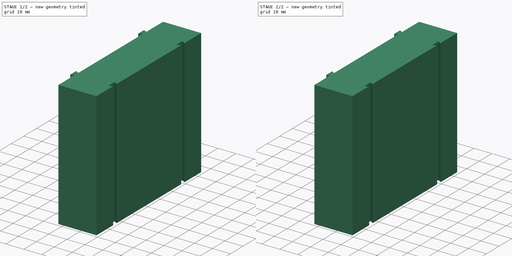
[diagram: build sequence overview — one tinted view per stage of 2, left to right]
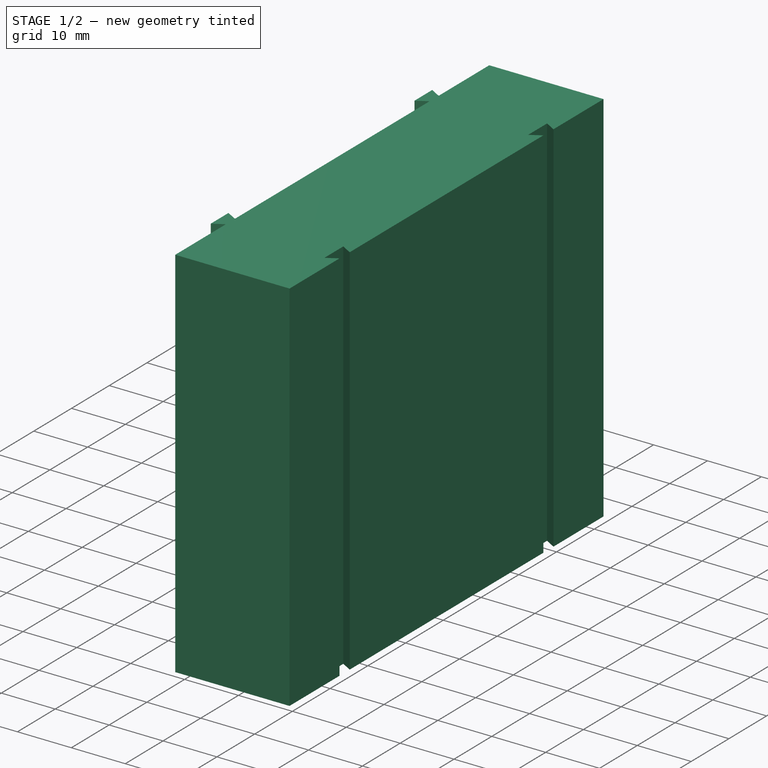
[diagram: stage 1 of 2 — iso view after this stage's code; geometry added in this stage tinted green]
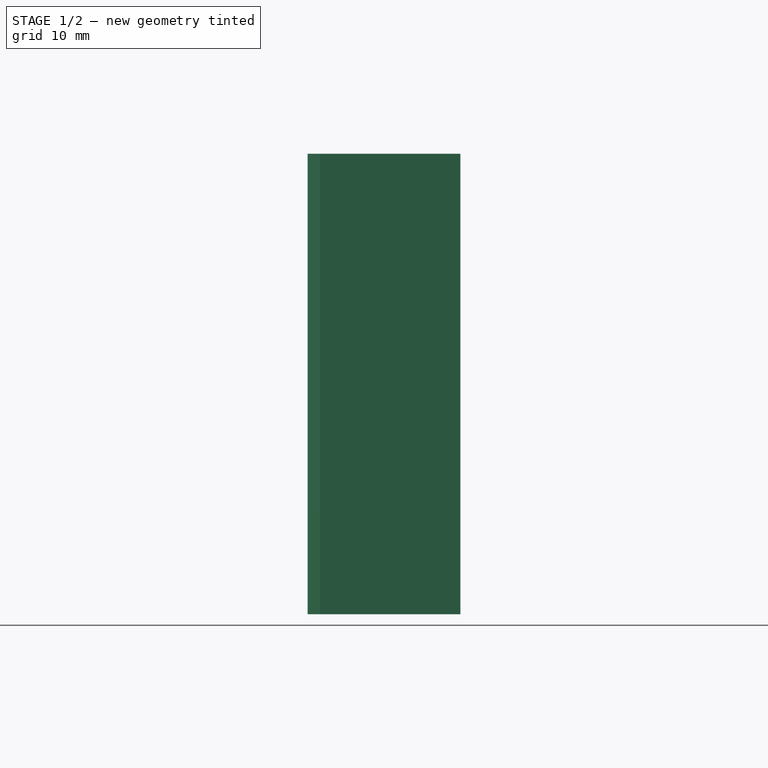
[diagram: stage 1 of 2 — front view after this stage's code; geometry added in this stage tinted green]
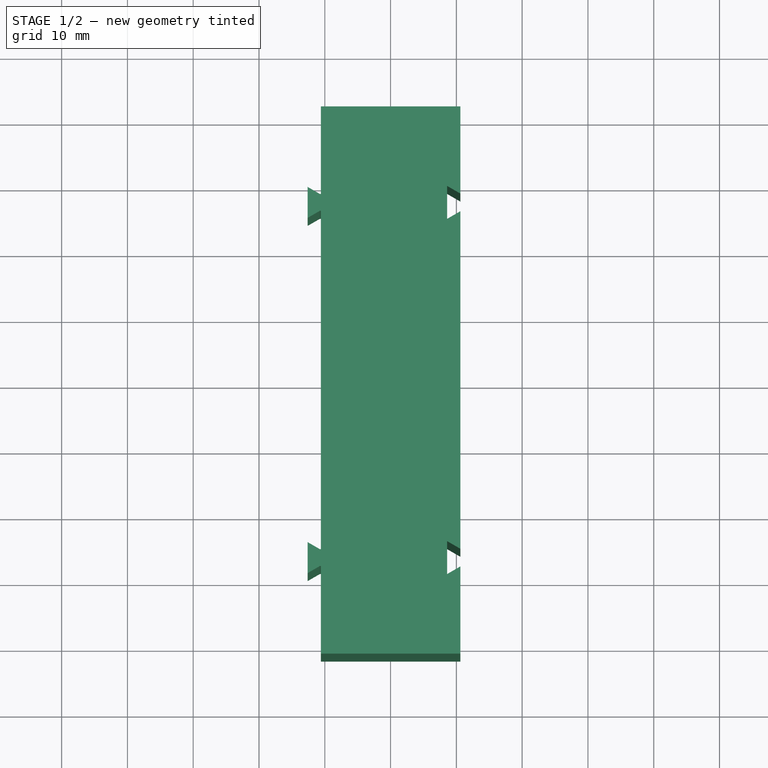
[diagram: stage 1 of 2 — top view after this stage's code; geometry added in this stage tinted green]
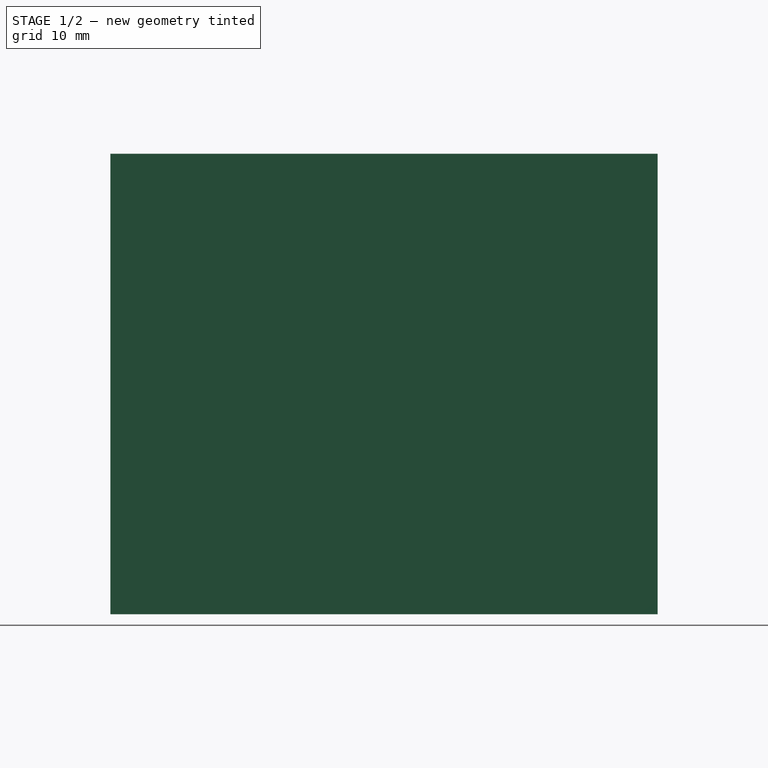
[diagram: stage 1 of 2 — right view after this stage's code; geometry added in this stage tinted green]
FCSTD DOCUMENT  (FreeCAD 0.20R29410 (Git))
Label: CardHolder
License: All rights reserved
LicenseURL: http://en.wikipedia.org/wiki/All_rights_reserved
objects: Sketcher::SketchObject×1, Spreadsheet::Sheet×1, PartDesign::Pad×1, PartDesign::Fillet×1, PartDesign::Body×1
note: 6 computed .brp shape members not serialized (recipe doc carries the construction recipe); baked Part::Feature solids carry a one-line shape summary decoded from their .brp

FEATURE [Sketcher::SketchObject] Sketch001
  FullyConstrained = true
  MapMode = 5
  Support = -> [XY_Plane]
  expr: Constraints[116] = <<Spreadsheet>>.Length + <<Spreadsheet>>.WallThickness * 2
  expr: Constraints[142] = <<Spreadsheet>>.Tolerance
  expr: Constraints[143] = .Constraints.Li - <<Spreadsheet>>.Tolerance
  expr: Constraints[144] = .Constraints.Wi - <<Spreadsheet>>.Tolerance * 2
  expr: Constraints[146] = .Constraints.Al
  expr: Constraints[158] = <<Spreadsheet>>.LockDistance
  expr: Constraints[159] = <<Spreadsheet>>.Width + <<Spreadsheet>>.WallThickness * 2
  sketch-geometry (56):
    g0: LineSegment StartX=-10.6 StartY=41.6 StartZ=0 EndX=10.6 EndY=41.6 EndZ=0
    g1: LineSegment StartX=10.6 StartY=41.6 StartZ=0 EndX=10.6 EndY=28.3453 EndZ=0
    g2: LineSegment StartX=10.6 StartY=28.3453 StartZ=0 EndX=8.6 EndY=29.5 EndZ=0
    g3: LineSegment StartX=8.6 StartY=29.5 StartZ=0 EndX=8.6 EndY=24.5 EndZ=0
    g4: LineSegment StartX=8.6 StartY=24.5 StartZ=0 EndX=10.6 EndY=25.6547 EndZ=0
    g5: LineSegment StartX=10.6 StartY=25.6547 StartZ=0 EndX=10.6 EndY=-25.6547 EndZ=0
    g6: LineSegment StartX=10.6 StartY=-25.6547 StartZ=0 EndX=8.6 EndY=-24.5 EndZ=0
    g7: LineSegment StartX=8.6 StartY=-24.5 StartZ=0 EndX=8.6 EndY=-29.5 EndZ=0
    g8: LineSegment StartX=8.6 StartY=-29.5 StartZ=0 EndX=10.6 EndY=-28.3453 EndZ=0
    g9: LineSegment StartX=10.6 StartY=-28.3453 StartZ=0 EndX=10.6 EndY=-41.6 EndZ=0
    g10: LineSegment StartX=10.6 StartY=-41.6 StartZ=0 EndX=-10.6 EndY=-41.6 EndZ=0
    g11: LineSegment StartX=-10.6 StartY=-41.6 StartZ=0 EndX=-10.6 EndY=-28.2819 EndZ=0
    g12: LineSegment StartX=-10.6 StartY=-28.2819 StartZ=0 EndX=-10.75 EndY=-28.2819 EndZ=0
    g13: LineSegment StartX=-10.75 StartY=-28.2819 StartZ=0 EndX=-12.6 EndY=-29.35 EndZ=0
    g14: LineSegment StartX=-12.6 StartY=-29.35 StartZ=0 EndX=-12.6 EndY=-24.65 EndZ=0
    g15: LineSegment StartX=-12.6 StartY=-24.65 StartZ=0 EndX=-10.75 EndY=-25.7181 EndZ=0
    g16: LineSegment StartX=-10.75 StartY=-25.7181 StartZ=0 EndX=-10.6 EndY=-25.7181 EndZ=0
    g17: LineSegment StartX=-10.6 StartY=-25.7181 StartZ=0 EndX=-10.6 EndY=25.7181 EndZ=0
    g18: LineSegment StartX=-10.6 StartY=25.7181 StartZ=0 EndX=-10.75 EndY=25.7181 EndZ=0
    g19: LineSegment StartX=-10.75 StartY=25.7181 StartZ=0 EndX=-12.6 EndY=24.65 EndZ=0
    g20: LineSegment StartX=-12.6 StartY=24.65 StartZ=0 EndX=-12.6 EndY=29.35 EndZ=0
    g21: LineSegment StartX=-12.6 StartY=29.35 StartZ=0 EndX=-10.75 EndY=28.2819 EndZ=0
    g22: LineSegment StartX=-10.75 StartY=28.2819 StartZ=0 EndX=-10.6 EndY=28.2819 EndZ=0
    g23: LineSegment StartX=-10.6 StartY=28.2819 StartZ=0 EndX=-10.6 EndY=41.6 EndZ=0
    g24: LineSegment StartX=-10.6 StartY=-25.7181 StartZ=0 EndX=-10.6 EndY=-28.2819 EndZ=0
    g25: LineSegment StartX=10.6 StartY=-28.3453 StartZ=0 EndX=10.6 EndY=-25.6547 EndZ=0
    g26: LineSegment StartX=10.6 StartY=25.6547 StartZ=0 EndX=10.6 EndY=28.3453 EndZ=0
    g27: LineSegment StartX=10 StartY=41 StartZ=0 EndX=-10 EndY=41 EndZ=0
    g28: LineSegment StartX=-10 StartY=41 StartZ=0 EndX=-10 EndY=27.6819 EndZ=0
    g29: LineSegment StartX=-10 StartY=27.6819 StartZ=0 EndX=-10.9108 EndY=27.6819 EndZ=0
    g30: LineSegment StartX=-10.9108 StartY=27.6819 StartZ=0 EndX=-12 EndY=28.3108 EndZ=0
    g31: LineSegment StartX=-12 StartY=28.3108 StartZ=0 EndX=-12 EndY=25.6892 EndZ=0
    g32: LineSegment StartX=-12 StartY=25.6892 StartZ=0 EndX=-10.9108 EndY=26.3181 EndZ=0
    g33: LineSegment StartX=-10.9108 StartY=26.3181 StartZ=0 EndX=-10 EndY=26.3181 EndZ=0
    g34: LineSegment StartX=-10 StartY=26.3181 StartZ=0 EndX=-10 EndY=27.6819 EndZ=0
    g35: LineSegment StartX=-10 StartY=26.3181 StartZ=0 EndX=-10 EndY=-41 EndZ=0
    g36: LineSegment StartX=-10 StartY=-41 StartZ=0 EndX=10 EndY=-41 EndZ=0
    g37: LineSegment StartX=10 StartY=-41 StartZ=0 EndX=10 EndY=24.6155 EndZ=0
    g38: LineSegment StartX=10 StartY=24.6155 StartZ=0 EndX=8 EndY=23.4608 EndZ=0
    g39: LineSegment StartX=8 StartY=23.4608 StartZ=0 EndX=8 EndY=30.5392 EndZ=0
    g40: LineSegment StartX=8 StartY=30.5392 StartZ=0 EndX=10 EndY=29.3845 EndZ=0
    g41: LineSegment StartX=10 StartY=29.3845 StartZ=0 EndX=10 EndY=41 EndZ=0
    g42: LineSegment StartX=-10 StartY=41 StartZ=0 EndX=-10.6 EndY=41 EndZ=0
    g43: LineSegment StartX=10 StartY=41 StartZ=0 EndX=10 EndY=41.6 EndZ=0
    g44: LineSegment StartX=10 StartY=29.3845 StartZ=0 EndX=10.6 EndY=29.3845 EndZ=0
    g45: LineSegment StartX=8.6 StartY=29.5 StartZ=0 EndX=8.9 EndY=30.0196 EndZ=0
    g46: LineSegment StartX=8.6 StartY=24.5 StartZ=0 EndX=8 EndY=24.5 EndZ=0
    g47: LineSegment StartX=10 StartY=24.6155 StartZ=0 EndX=9.7 EndY=25.1351 EndZ=0
    g48: LineSegment StartX=-12.6 StartY=27 StartZ=0 EndX=10.6 EndY=27 EndZ=0
    g49: LineSegment StartX=-10.6 StartY=28.2819 StartZ=0 EndX=-10.6 EndY=27.6819 EndZ=0
    g50: LineSegment StartX=-10.6 StartY=26.3181 StartZ=0 EndX=-10.6 EndY=25.7181 EndZ=0
    g51: LineSegment StartX=-12 StartY=28.3108 StartZ=0 EndX=-11.7 EndY=28.8304 EndZ=0
    g52: LineSegment StartX=-12 StartY=25.6892 StartZ=0 EndX=-12.6 EndY=25.6892 EndZ=0
    g53: LineSegment StartX=-10.75 StartY=25.7181 StartZ=0 EndX=-11.05 EndY=26.2377 EndZ=0
    g54: LineSegment StartX=10 StartY=-41 StartZ=0 EndX=10 EndY=-41.6 EndZ=0
    g55: LineSegment StartX=-10.6 StartY=-27 StartZ=0 EndX=10.6 EndY=-27 EndZ=0
  constraints (162):
    c: Horizontal(g0)
    c: Coincident(g0,g1)
    c: Vertical(g1)
    c: Coincident(g1,g2)
    c: Coincident(g2,g3)
    c: Vertical(g3)
    c: Coincident(g3,g4)
    c: Coincident(g4,g5)
    c: Vertical(g5)
    c: Coincident(g5,g6)
    c: Coincident(g6,g7)
    c: Vertical(g7)
    c: Coincident(g7,g8)
    c: Coincident(g8,g9)
    c: Vertical(g9)
    c: Coincident(g9,g10)
    c: Horizontal(g10)
    c: Coincident(g10,g11)
    c: Vertical(g11)
    c: Coincident(g11,g12)
    c: Coincident(g12,g13)
    c: Coincident(g13,g14)
    c: Vertical(g14)
    c: Coincident(g14,g15)
    c: Coincident(g15,g16)
    c: Horizontal(g16)
    c: Coincident(g16,g17)
    c: Vertical(g17)
    c: Coincident(g17,g18)
    c: Horizontal(g18)
    c: Coincident(g18,g19)
    c: Coincident(g19,g20)
    c: Vertical(g20)
    c: Coincident(g20,g21)
    c: Coincident(g21,g22)
    c: Horizontal(g22)
    c: Coincident(g22,g23)
    c: Coincident(g23,g0)
    c: Vertical(g23)
    c: Coincident(g49,g22)
    c: Coincident(g50,g17)
    c: Coincident(g24,g16)
    c: Coincident(g24,g11)
    c: Vertical(g24)
    c: Coincident(g25,g8)
    c: Coincident(g25,g5)
    c: Vertical(g25)
    c: Coincident(g26,g4)
    c: Coincident(g26,g1)
    c: Horizontal(g12)
    c: Equal(g6,g8)
    c: Equal(g1,g9)
    c: Equal(g3,g7)
    c: Equal(g26,g25)
    c: Equal(g4,g2)
    c: PointOnObject(g3,g7)
    c: Equal(g13,g15)
    c: Equal(g15,g19)
    c: Equal(g19,g21)
    c: Equal(g16,g12)
    c: Equal(g12,g18)
    c: Equal(g18,g22)
    c: PointOnObject(g19,g14)
    c: Horizontal(g27)
    c: Coincident(g28,g27)
    c: Vertical(g28)
    c: Coincident(g29,g28)
    c: Horizontal(g29)
    c: Coincident(g30,g29)
    c: Coincident(g31,g30)
    c: Vertical(g31)
    c: Coincident(g32,g31)
    c: Coincident(g33,g32)
    c: Horizontal(g33)
    c: Coincident(g34,g33)
    c: Coincident(g34,g28)
    c: Vertical(g34)
    c: Coincident(g35,g33)
    c: Vertical(g35)
    c: Horizontal(g36)
    c: Vertical(g37)
    c: Coincident(g38,g37)
    c: Coincident(g39,g38)
    c: Vertical(g39)
    c: Coincident(g40,g39)
    c: Coincident(g41,g40)
    c: Coincident(g41,g27)
    c: Vertical(g41)
    c: PointOnObject(g40,g37)
    c: Parallel(g40,g2)
    c: Parallel(g4,g38)
    c: Coincident(g42,g27)
    c: PointOnObject(g42,g23)
    c: Horizontal(g42)
    c: Coincident(g43,g27)
    c: PointOnObject(g43,g0)
    c: Vertical(g43)
    c: Coincident(g44,g40)
    c: PointOnObject(g44,g1)
    c: Horizontal(g44)
    c: Coincident(g45,g2)
    c: PointOnObject(g45,g40)
    c: Coincident(g46,g3)
    c: PointOnObject(g46,g39)
    c: Horizontal(g46)
    c: Coincident(g47,g37)
    c: PointOnObject(g47,g4)
    c: Perpendicular(g2,g45)
    c: Perpendicular(g4,g47)
    c: Equal(g42,g43)
    c: Equal(g43,g44)
    c: Equal(g44,g45)
    c: Equal(g45,g46)
    c: Equal(g46,g47)
    c: DistanceX(g42,g42) = 0.6
    c: Horizontal(g48)
    c: DistanceX(g0,g0) = 21.2
    c: Symmetric(g20,g19,g48)
    c: Vertical(g49)
    c: Vertical(g50)
    c: PointOnObject(g22,g17)
    c: PointOnObject(g49,g29)
    c: PointOnObject(g50,g33)
    c: Equal(g42,g49)
    c: Equal(g49,g50)
    c: Parallel(g21,g30)
    c: Parallel(g19,g32)
    c: Coincident(g51,g30)
    c: PointOnObject(g51,g21)
    c: Coincident(g52,g31)
    c: PointOnObject(g52,g20)
    c: Horizontal(g52)
    c: Coincident(g53,g18)
    c: PointOnObject(g53,g32)
    c: Perpendicular(g32,g53)
    c: Perpendicular(g51,g21)
    c: Equal(g50,g53)
    c: Equal(g53,g52)
    c: Equal(g52,g51)
    c: Symmetric(g1,g4,g48)
    c: DistanceX(g2,g1) = 2  'Li'
    c: DistanceY(g3,g3) = 5  'Wi'
    c: DistanceX(g22,g22) = 0.15
    c: DistanceX(g20,g21) = 1.85
    c: DistanceY(g20,g20) = 4.7
    c: Angle(g3,g2) = 1.0472  'Al'
    c: Angle(g20,g21) = 1.0472
    c: Coincident(g54,g36)
    c: PointOnObject(g54,g10)
    c: Vertical(g54)
    c: Equal(g14,g20)
    c: Equal(g11,g23)
    c: Coincident(g37,g36)
    c: Equal(g54,g47)
    c: Coincident(g36,g35)
    c: PointOnObject(g55,g24)
    c: Horizontal(g55)
    c: Symmetric(g5,g8,g55)
    c: DistanceY(g55,g48) = 54
    c: DistanceY(g10,g0) = 83.2
    c: Symmetric(g0,g10,g-1)
    c: Vertical(g26)
FEATURE [Spreadsheet::Sheet] Spreadsheet
  cells = B2=Length; C2(Length)==20mm; B3=Width; C3(Width)==82mm; B4=Height; C4(Height)==70mm; B5=WallThickness; C5(WallThickness)==0.6mm; B6=LockDistance; C6(LockDistance)==54mm; B7=Tolerance; C7(Tolerance)==0.15mm
FEATURE [PartDesign::Pad] Pad
  Direction = (0,0,1)
  Length = 70
  Length2 = 10
  Profile = -> Sketch001
  ReferenceAxis = -> Sketch001 [N_Axis]
  Type = 0
  expr: Length = <<Spreadsheet>>.Height
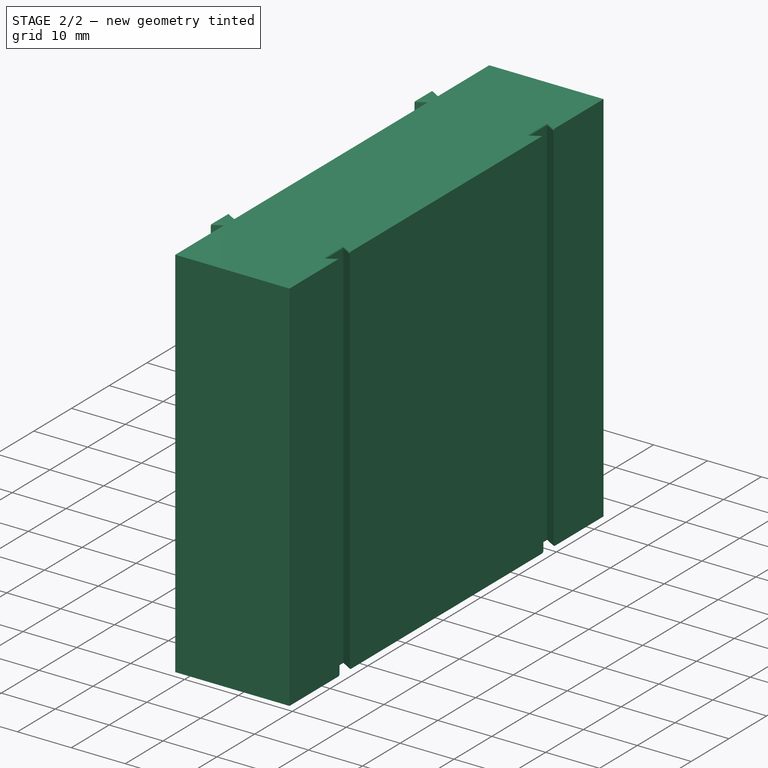
[diagram: stage 2 of 2 — iso view after this stage's code; geometry added in this stage tinted green]
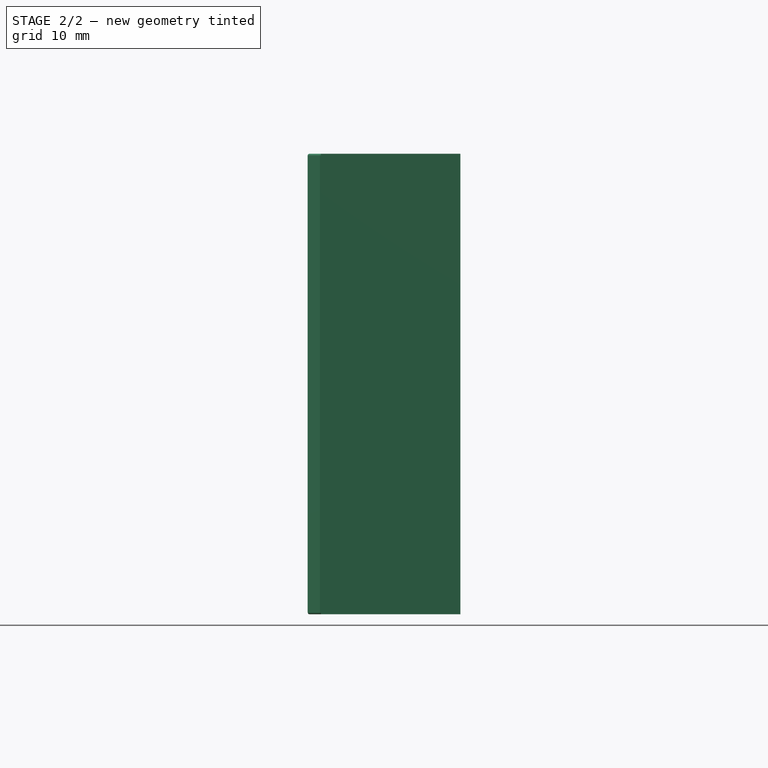
[diagram: stage 2 of 2 — front view after this stage's code; geometry added in this stage tinted green]
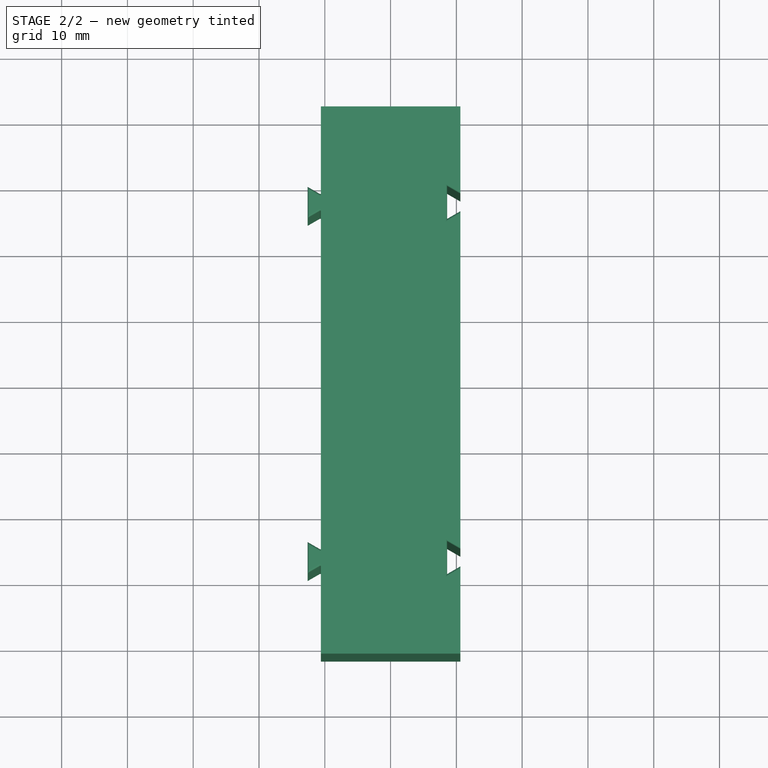
[diagram: stage 2 of 2 — top view after this stage's code; geometry added in this stage tinted green]
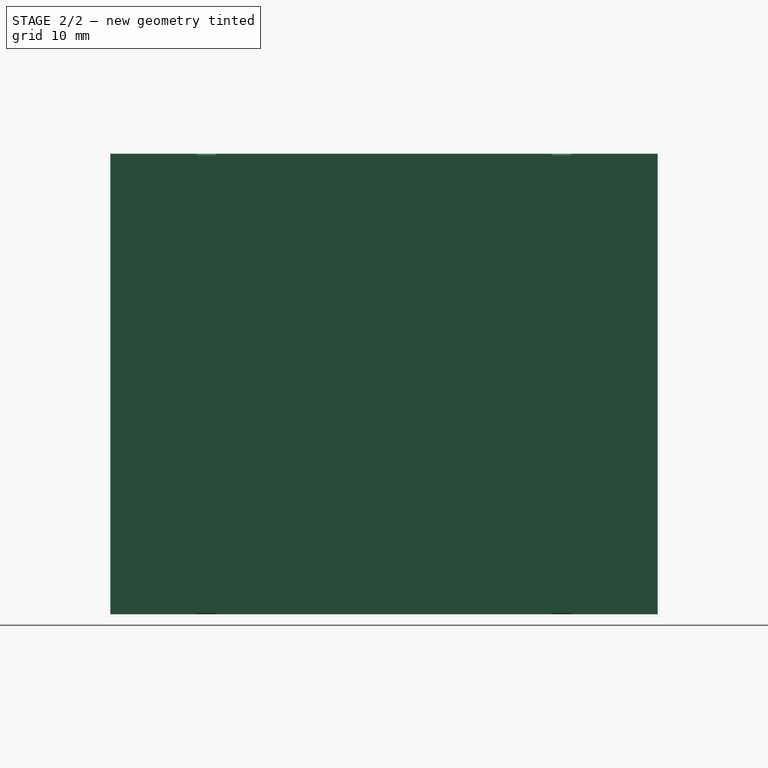
[diagram: stage 2 of 2 — right view after this stage's code; geometry added in this stage tinted green]
FEATURE [PartDesign::Fillet] Fillet
  Base = -> Pad [Edge28,Edge25,Edge22,Edge16,Edge13,Edge10,Edge58,Edge61,Edge64,Edge67,Edge70,Edge52,Edge49,Edge46,Edge43,Edge40,Edge27,Edge24,Edge21,Edge9,Edge12,Edge15,Edge57,Edge69,Edge66,Edge63,Edge60,Edge51,Edge48,Edge45,Edge42,Edge39]
  BaseFeature = -> Pad
  Radius = 0.3
  SupportTransform = false
  UseAllEdges = false
FEATURE [PartDesign::Body] Body
  Group = -> [Sketch001,Pad,Fillet]
  Origin = -> Origin
  Tip = -> Fillet
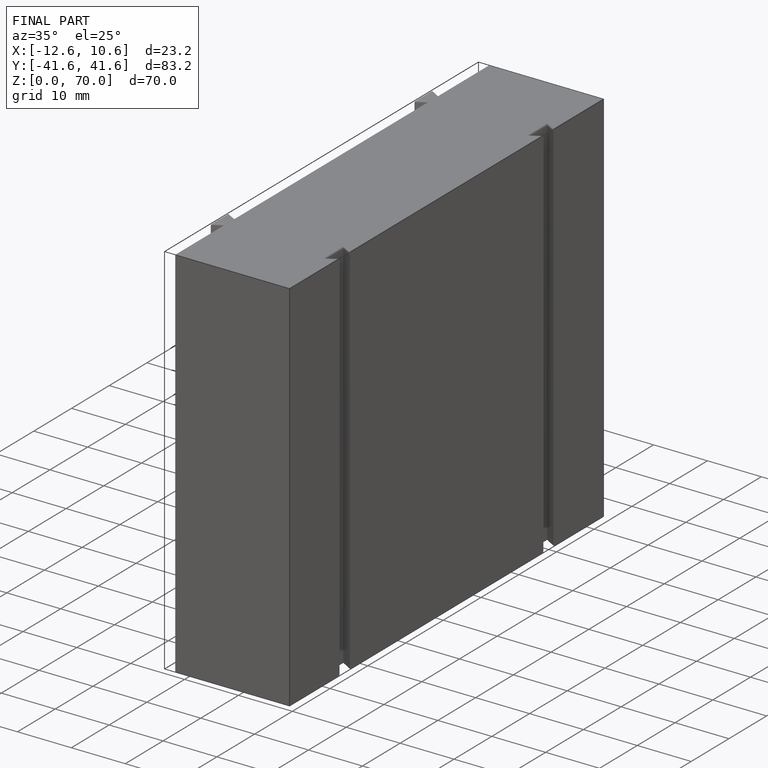
[diagram: finished part — iso view with bounding-box wireframe]
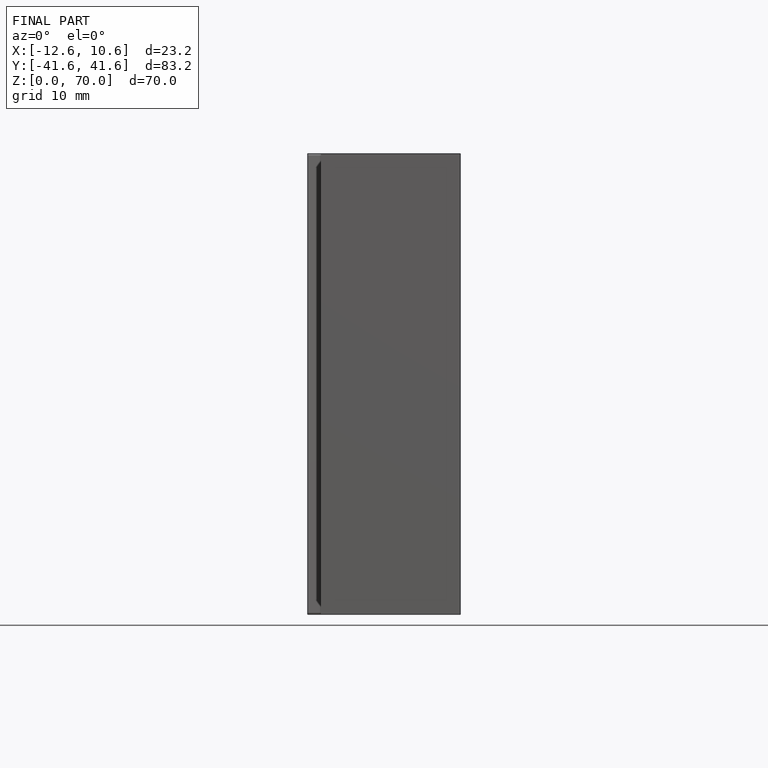
[diagram: finished part — front view with bounding-box wireframe]
